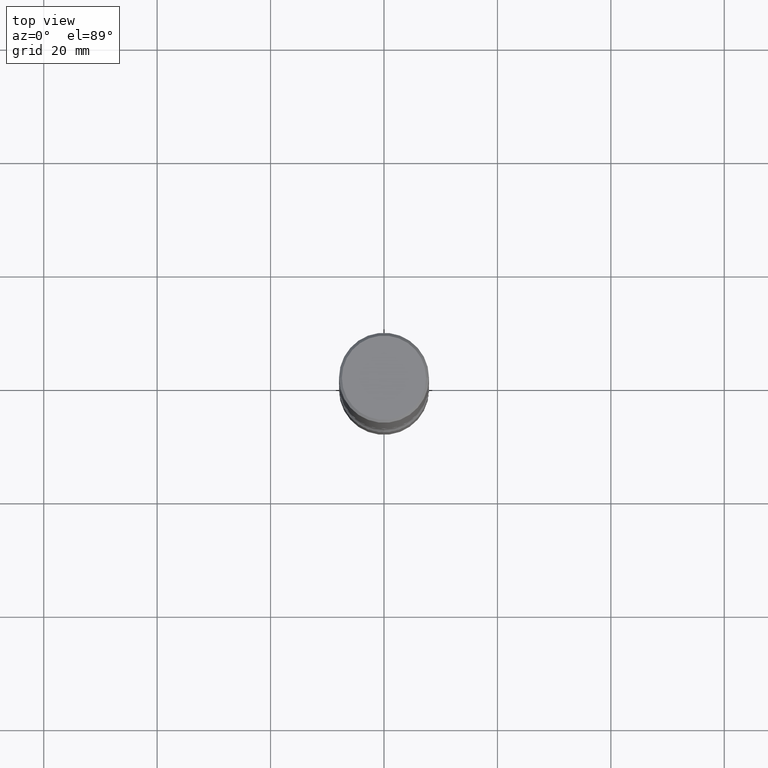
[diagram: clean part render]
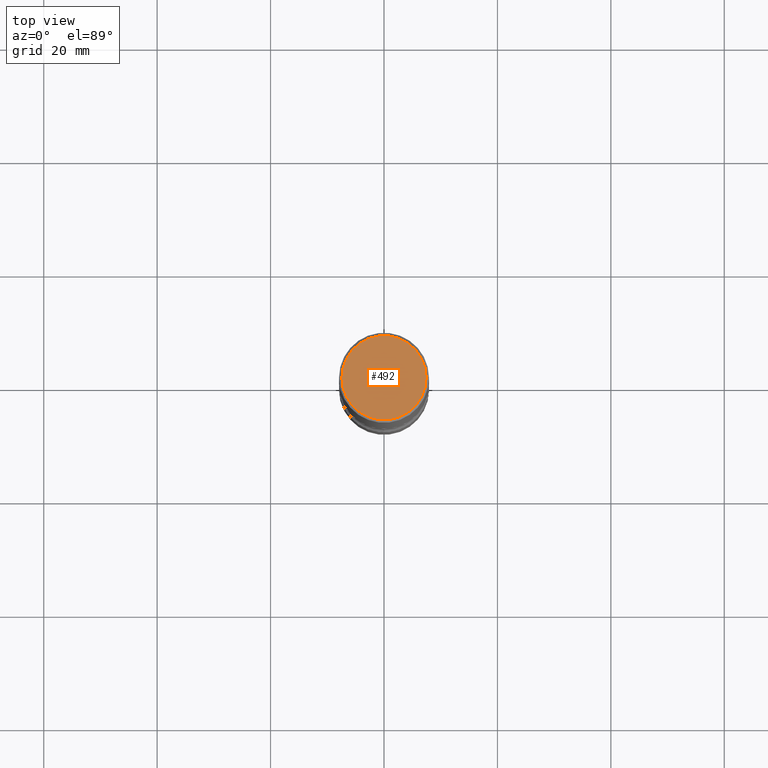
[diagram: same view with one face highlighted and labeled with its STEP entity id]
A machine part, top view. The second image highlights one B-rep face of the part: STEP entity #492.
In plain terms, the highlighted planar face has unit normal (0, -0, -1).
Its self-contained STEP definition (entity closure, byte-faithful):
#94 = AXIS2_PLACEMENT_3D ( 'NONE', #239, #422, #467 ) ;
#104 = PLANE ( 'NONE',  #94 ) ;
#133 = ORIENTED_EDGE ( 'NONE', *, *, #142, .T. ) ;
#136 = DIRECTION ( 'NONE',  ( 1.000000000000000000, -6.982962677686266711E-15, 4.876067333457692840E-29 ) ) ;
#142 = EDGE_CURVE ( 'NONE', #217, #558, #143, .T. ) ;
#143 = CIRCLE ( 'NONE', #303, 0.2924999999999998157 ) ;
#147 = EDGE_CURVE ( 'NONE', #558, #217, #553, .T. ) ;
#170 = DIRECTION ( 'NONE',  ( -2.445468806185136597E-29, 3.491481338843145583E-15, 1.000000000000000000 ) ) ;
#190 = AXIS2_PLACEMENT_3D ( 'NONE', #434, #170, #136 ) ;
#217 = VERTEX_POINT ( 'NONE', #392 ) ;
#234 = EDGE_LOOP ( 'NONE', ( #133, #381 ) ) ;
#239 = CARTESIAN_POINT ( 'NONE',  ( 2.042516583223231356E-15, 0.2924999999999998157, -1.019124035366569212E-15 ) ) ;
#303 = AXIS2_PLACEMENT_3D ( 'NONE', #344, #364, #522 ) ;
#344 = CARTESIAN_POINT ( 'NONE',  ( -1.043851414335219820E-46, 1.490343170380447200E-32, 4.268512490100411279E-18 ) ) ;
#364 = DIRECTION ( 'NONE',  ( -2.445468806185136597E-29, 3.491481338843145583E-15, 1.000000000000000000 ) ) ;
#376 = FACE_OUTER_BOUND ( 'NONE', #234, .T. ) ;
#381 = ORIENTED_EDGE ( 'NONE', *, *, #147, .T. ) ;
#392 = CARTESIAN_POINT ( 'NONE',  ( -0.2924999999999998157, 2.077431396611663005E-15, 4.268512490086005323E-18 ) ) ;
#422 = DIRECTION ( 'NONE',  ( 2.438088387897960049E-29, -3.491481338843145188E-15, -1.000000000000000000 ) ) ;
#434 = CARTESIAN_POINT ( 'NONE',  ( -1.043851414335219820E-46, 1.490343170380447200E-32, 4.268512490100411279E-18 ) ) ;
#467 = DIRECTION ( 'NONE',  ( -1.000000000000000000, 6.982962677686265922E-15, -4.876176775795935793E-29 ) ) ;
#492 = ADVANCED_FACE ( 'NONE', ( #376 ), #104, .F. ) ;
#508 = CARTESIAN_POINT ( 'NONE',  ( 0.2924999999999998157, -2.110215457714318748E-15, 4.268512490114932791E-18 ) ) ;
#522 = DIRECTION ( 'NONE',  ( 1.000000000000000000, -6.982962677686266711E-15, 4.876067333457692840E-29 ) ) ;
#553 = CIRCLE ( 'NONE', #190, 0.2924999999999998157 ) ;
#558 = VERTEX_POINT ( 'NONE', #508 ) ;